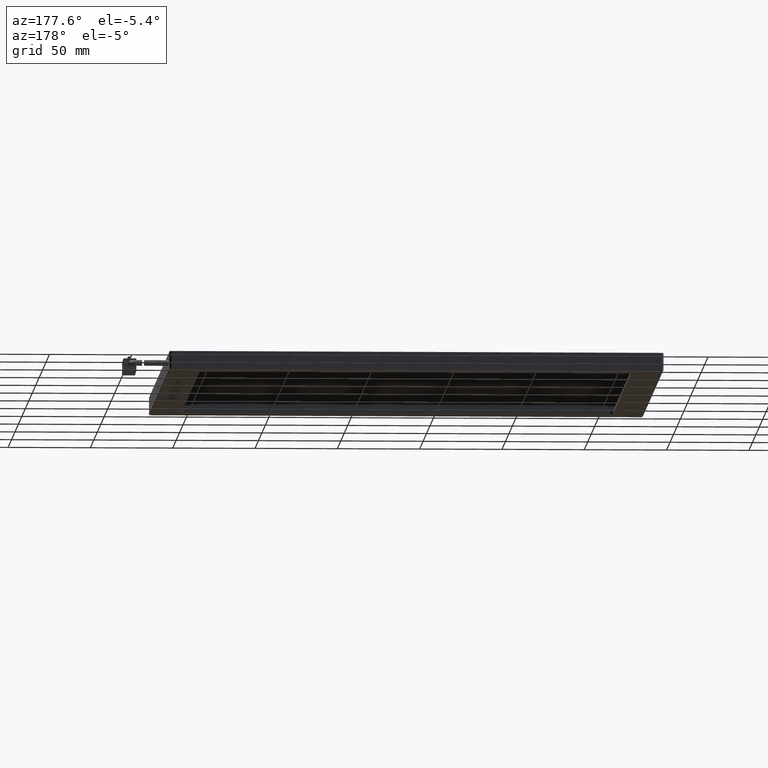
[diagram: clean part render]
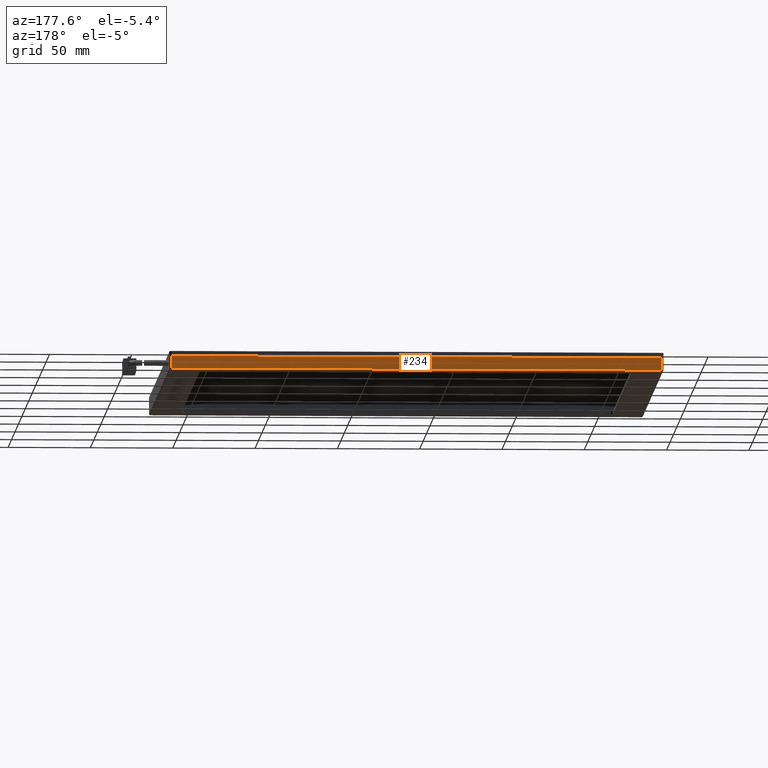
[diagram: same view with one face highlighted and labeled with its STEP entity id]
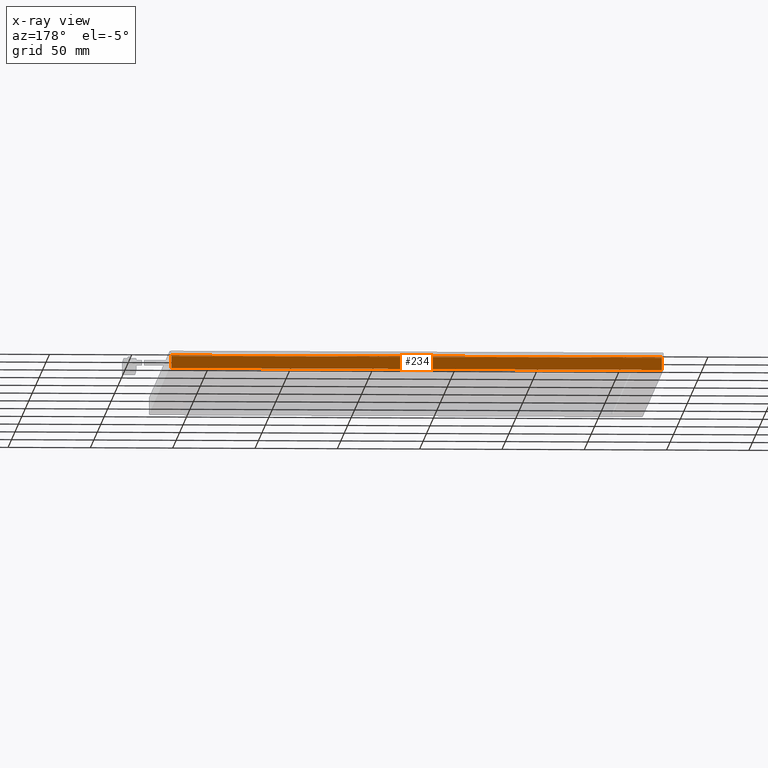
[diagram: x-ray of the same camera — body ghosted, the highlighted face saturated]
A machine part, auxiliary view. The second image highlights one B-rep face of the part: STEP entity #234.
The next image is the same camera in x-ray: the body ghosted, the highlighted face saturated — about 0% of this face is hidden behind the body in this view.
In plain terms, the highlighted planar face has unit normal (0, -1, 0).
Its self-contained STEP definition (entity closure, byte-faithful):
#234 = ADVANCED_FACE ( 'NONE', ( #18078 ), #12603, .F. ) ;
#457 = LINE ( 'NONE', #17456, #8192 ) ;
#716 = ORIENTED_EDGE ( 'NONE', *, *, #5685, .F. ) ;
#915 = DIRECTION ( 'NONE',  ( -0.0000000000000000000, 0.0000000000000000000, 1.000000000000000000 ) ) ;
#1260 = CARTESIAN_POINT ( 'NONE',  ( -178.7273477157360400, 189.4538071065989300, -2.500000000000076800 ) ) ;
#1469 = ORIENTED_EDGE ( 'NONE', *, *, #16791, .T. ) ;
#1728 = DIRECTION ( 'NONE',  ( 1.000000000000000000, -0.0000000000000000000, 0.0000000000000000000 ) ) ;
#1784 = EDGE_CURVE ( 'NONE', #18351, #13145, #6087, .T. ) ;
#1990 = LINE ( 'NONE', #5424, #17124 ) ;
#2845 = CARTESIAN_POINT ( 'NONE',  ( 119.2726522842639600, 189.4538071065989900, -2.500000000000066600 ) ) ;
#3231 = CARTESIAN_POINT ( 'NONE',  ( -178.7273477157360400, 189.4538071065989300, 4.999999999999931600 ) ) ;
#3891 = VERTEX_POINT ( 'NONE', #3231 ) ;
#4527 = ORIENTED_EDGE ( 'NONE', *, *, #1784, .F. ) ;
#5424 = CARTESIAN_POINT ( 'NONE',  ( -179.7273477157360400, 189.4538071065989300, -2.500000000000067900 ) ) ;
#5685 = EDGE_CURVE ( 'NONE', #13356, #18351, #1990, .T. ) ;
#6087 = LINE ( 'NONE', #18064, #13473 ) ;
#8192 = VECTOR ( 'NONE', #18872, 1000.000000000000000 ) ;
#9004 = CARTESIAN_POINT ( 'NONE',  ( -179.7273477157360400, 189.4538071065989300, 4.999999999999931600 ) ) ;
#9395 = AXIS2_PLACEMENT_3D ( 'NONE', #18702, #18641, #18454 ) ;
#11261 = LINE ( 'NONE', #9004, #15146 ) ;
#12006 = EDGE_LOOP ( 'NONE', ( #716, #15813, #1469, #4527 ) ) ;
#12603 = PLANE ( 'NONE',  #9395 ) ;
#13145 = VERTEX_POINT ( 'NONE', #14566 ) ;
#13356 = VERTEX_POINT ( 'NONE', #1260 ) ;
#13473 = VECTOR ( 'NONE', #915, 1000.000000000000000 ) ;
#14566 = CARTESIAN_POINT ( 'NONE',  ( 119.2726522842639000, 189.4538071065989900, 4.999999999999931600 ) ) ;
#15146 = VECTOR ( 'NONE', #1728, 1000.000000000000000 ) ;
#15752 = DIRECTION ( 'NONE',  ( 1.000000000000000000, -0.0000000000000000000, 0.0000000000000000000 ) ) ;
#15813 = ORIENTED_EDGE ( 'NONE', *, *, #18790, .F. ) ;
#16791 = EDGE_CURVE ( 'NONE', #3891, #13145, #11261, .T. ) ;
#17124 = VECTOR ( 'NONE', #15752, 1000.000000000000000 ) ;
#17456 = CARTESIAN_POINT ( 'NONE',  ( -178.7273477157360400, 189.4538071065989300, 4.999999999999931600 ) ) ;
#18064 = CARTESIAN_POINT ( 'NONE',  ( 119.2726522842639600, 189.4538071065989300, 4.999999999999931600 ) ) ;
#18078 = FACE_OUTER_BOUND ( 'NONE', #12006, .T. ) ;
#18351 = VERTEX_POINT ( 'NONE', #2845 ) ;
#18454 = DIRECTION ( 'NONE',  ( 0.0000000000000000000, -0.0000000000000000000, -1.000000000000000000 ) ) ;
#18641 = DIRECTION ( 'NONE',  ( 0.0000000000000000000, -1.000000000000000000, 0.0000000000000000000 ) ) ;
#18702 = CARTESIAN_POINT ( 'NONE',  ( -179.7273477157360400, 189.4538071065989300, 4.999999999999931600 ) ) ;
#18790 = EDGE_CURVE ( 'NONE', #3891, #13356, #457, .T. ) ;
#18872 = DIRECTION ( 'NONE',  ( 0.0000000000000000000, -0.0000000000000000000, -1.000000000000000000 ) ) ;